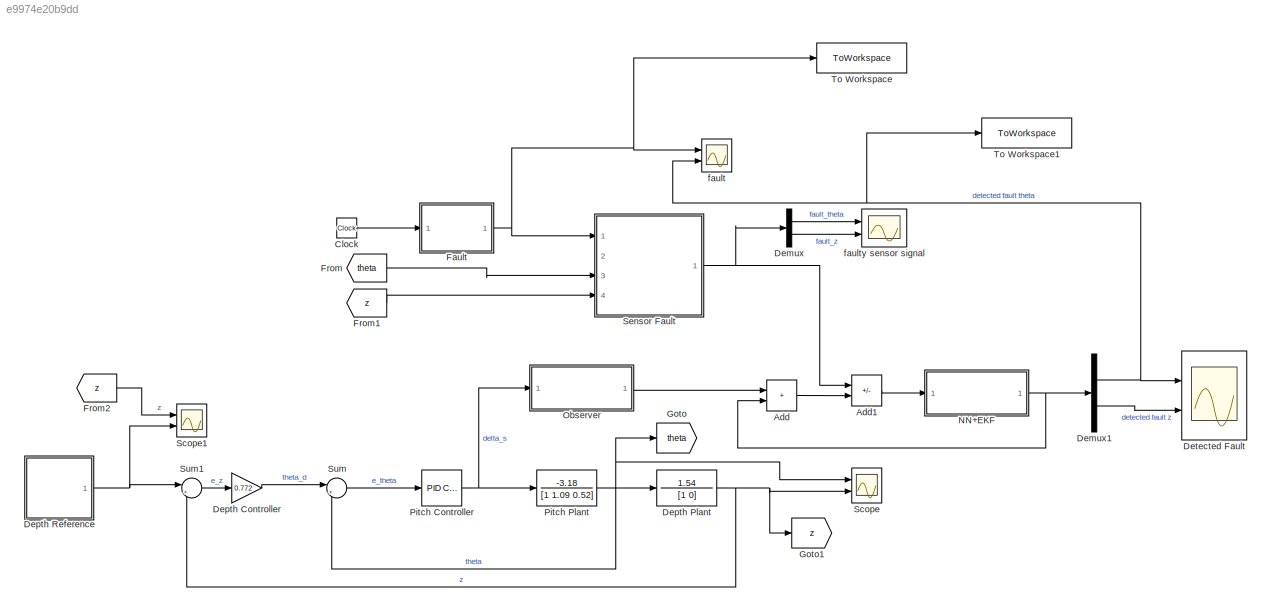
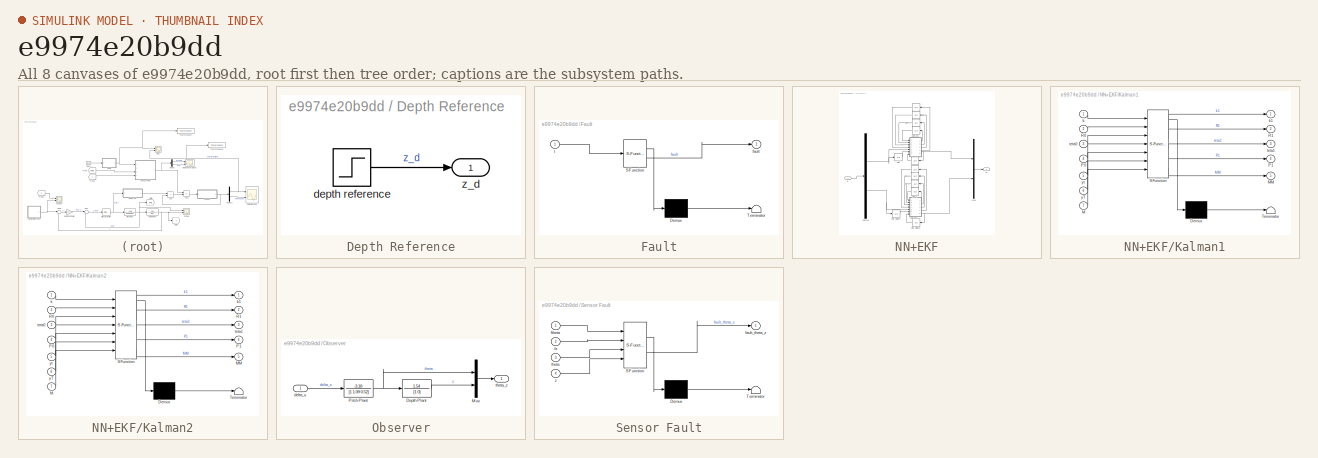
[diagram: thumbnail index - all 8 canvases of the model, root first then tree order]
MODEL slx_e9974e20b9dd
KIND model
CONFIG AbsTol = auto
CONFIG EnableMultiTasking = off
CONFIG FixedStep = auto
CONFIG MaxStep = auto
CONFIG MinStep = auto
CONFIG RelTol = 1e-3
CONFIG SampleTimeConstraint = Unconstrained
CONFIG SolverName = VariableStepAuto
CONFIG StartTime = 0.0
CONFIG StopTime = 10.0
BLOCK [Sum] Add
  IconShape = rectangular
  Ports = [2, 1]
BLOCK [Sum] Add1
  IconShape = rectangular
  Inputs = +-
  Ports = [2, 1]
BLOCK [Clock] Clock
BLOCK [Demux] Demux
  Outputs = 2
  Ports = [1, 2]
BLOCK [Demux] Demux1
  Outputs = 2
  Ports = [1, 2]
BLOCK [Gain] Depth Controller
  Gain = 0.772
BLOCK [TransferFcn] Depth Plant
  Denominator = [1 0]
  Numerator = 1.54
BLOCK [SubSystem] Depth Reference
  Ports = [0, 1]
  RequestExecContextInheritance = off
BLOCK [Step] Depth Reference/depth reference
  After = 10
  SampleTime = 0
  Time = 0
BLOCK [Outport] Depth Reference/z_d
BLOCK [Scope] Detected Fault
  Floating = off
  NumInputPorts = 2
  Ports = [2]
  ScopeSpecificationString = Simulink.scopes.TimeScopeBlockCfg('CurrentConfiguration', extmgr.ConfigurationSet(extmgr.Configuration('Core','General UI',true),extmgr.Configuration('Core','Source UI',true),extmgr.Configuration('Sources','WiredSimulink',true,'DataLoggingVariableName','ScopeData1'),extmgr.Configuration('Visuals','Time Domain',true,'SerializedDisplays',{struct('MinYLimReal','-0.00629','MaxYLimReal','0.0559','YLabe...<+1446ch>
BLOCK [SubSystem] Fault
  ErrorFcn = Stateflow.Translate.translate
  PermitHierarchicalResolution = ExplicitOnly
  Ports = [1, 1]
  RequestExecContextInheritance = off
  SFBlockType = MATLAB Function
  TreatAsAtomicUnit = on
BLOCK [Demux] Fault/ Demux 
  Outputs = 1
  Ports = [1, 1]
BLOCK [S-Function] Fault/ SFunction 
  EnableBusSupport = on
  FunctionName = sf_sfun
  PortCounts = [1 2]
  Ports = [1, 2]
  SFcnIsStateOwnerBlock = off
  SFunctionDeploymentMode = off
  Tag = Stateflow S-Function 2
BLOCK [Terminator] Fault/ Terminator 
BLOCK [Outport] Fault/fault
BLOCK [Inport] Fault/t
BLOCK [From] From
  GotoTag = theta
BLOCK [From] From1
  GotoTag = z
BLOCK [From] From2
  GotoTag = z
BLOCK [Goto] Goto
  GotoTag = theta
BLOCK [Goto] Goto1
  GotoTag = z
BLOCK [SubSystem] NN+EKF
  Ports = [1, 1]
  RequestExecContextInheritance = off
BLOCK [UnitDelay] NN+EKF/ 
  HasFrameUpgradeWarning = on
  InitialCondition = 1
  NameLocation = top
  SampleTime = -1
BLOCK [UnitDelay] NN+EKF/  
  HasFrameUpgradeWarning = on
  InitialCondition = 5*eye(3)
  SampleTime = -1
BLOCK [UnitDelay] NN+EKF/   
  HasFrameUpgradeWarning = on
  InitialCondition = 5*eye(3)
  SampleTime = -1
BLOCK [UnitDelay] NN+EKF/      
  HasFrameUpgradeWarning = on
  InitialCondition = .01
  SampleTime = -1
BLOCK [Demux] NN+EKF/Demux
  Outputs = 2
  Ports = [1, 2]
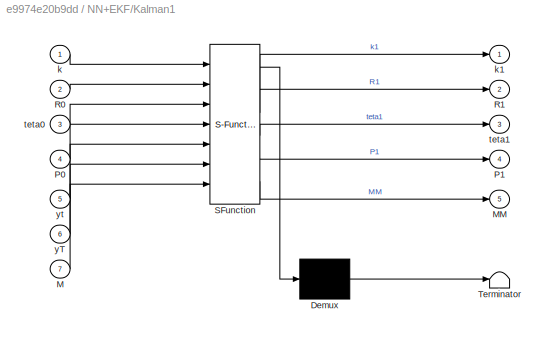
BLOCK [SubSystem] NN+EKF/Kalman1
  ErrorFcn = Stateflow.Translate.translate
  PermitHierarchicalResolution = ExplicitOnly
  Ports = [7, 5]
  RequestExecContextInheritance = off
  SFBlockType = MATLAB Function
  TreatAsAtomicUnit = on
BLOCK [Demux] NN+EKF/Kalman1/ Demux 
  Outputs = 1
  Ports = [1, 1]
BLOCK [S-Function] NN+EKF/Kalman1/ SFunction 
  EnableBusSupport = on
  FunctionName = sf_sfun
  PortCounts = [7 6]
  Ports = [7, 6]
  SFcnIsStateOwnerBlock = off
  SFunctionDeploymentMode = off
  Tag = Stateflow S-Function 8
BLOCK [Terminator] NN+EKF/Kalman1/ Terminator 
BLOCK [Inport] NN+EKF/Kalman1/M
  Port = 7
BLOCK [Outport] NN+EKF/Kalman1/MM
  Port = 5
  VectorParamsAs1DForOutWhenUnconnected = off
BLOCK [Inport] NN+EKF/Kalman1/P0
  Port = 4
BLOCK [Outport] NN+EKF/Kalman1/P1
  Port = 4
  VectorParamsAs1DForOutWhenUnconnected = off
BLOCK [Inport] NN+EKF/Kalman1/R0
  Port = 2
BLOCK [Outport] NN+EKF/Kalman1/R1
  Port = 2
  VectorParamsAs1DForOutWhenUnconnected = off
BLOCK [Inport] NN+EKF/Kalman1/k
BLOCK [Outport] NN+EKF/Kalman1/k1
  VectorParamsAs1DForOutWhenUnconnected = off
BLOCK [Inport] NN+EKF/Kalman1/teta0
  Port = 3
BLOCK [Outport] NN+EKF/Kalman1/teta1
  Port = 3
  VectorParamsAs1DForOutWhenUnconnected = off
BLOCK [Inport] NN+EKF/Kalman1/yT
  Port = 6
BLOCK [Inport] NN+EKF/Kalman1/yt
  Port = 5
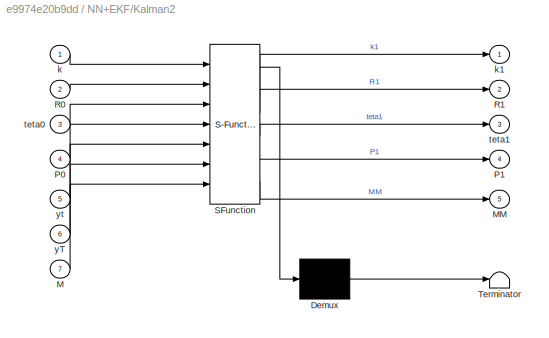
BLOCK [SubSystem] NN+EKF/Kalman2
  ErrorFcn = Stateflow.Translate.translate
  PermitHierarchicalResolution = ExplicitOnly
  Ports = [7, 5]
  RequestExecContextInheritance = off
  SFBlockType = MATLAB Function
  TreatAsAtomicUnit = on
BLOCK [Demux] NN+EKF/Kalman2/ Demux 
  Outputs = 1
  Ports = [1, 1]
BLOCK [S-Function] NN+EKF/Kalman2/ SFunction 
  EnableBusSupport = on
  FunctionName = sf_sfun
  PortCounts = [7 6]
  Ports = [7, 6]
  SFcnIsStateOwnerBlock = off
  SFunctionDeploymentMode = off
  Tag = Stateflow S-Function 9
BLOCK [Terminator] NN+EKF/Kalman2/ Terminator 
BLOCK [Inport] NN+EKF/Kalman2/M
  Port = 7
BLOCK [Outport] NN+EKF/Kalman2/MM
  Port = 5
  VectorParamsAs1DForOutWhenUnconnected = off
BLOCK [Inport] NN+EKF/Kalman2/P0
  Port = 4
BLOCK [Outport] NN+EKF/Kalman2/P1
  Port = 4
  VectorParamsAs1DForOutWhenUnconnected = off
BLOCK [Inport] NN+EKF/Kalman2/R0
  Port = 2
BLOCK [Outport] NN+EKF/Kalman2/R1
  Port = 2
  VectorParamsAs1DForOutWhenUnconnected = off
BLOCK [Inport] NN+EKF/Kalman2/k
BLOCK [Outport] NN+EKF/Kalman2/k1
  VectorParamsAs1DForOutWhenUnconnected = off
BLOCK [Inport] NN+EKF/Kalman2/teta0
  Port = 3
BLOCK [Outport] NN+EKF/Kalman2/teta1
  Port = 3
  VectorParamsAs1DForOutWhenUnconnected = off
BLOCK [Inport] NN+EKF/Kalman2/yT
  Port = 6
BLOCK [Inport] NN+EKF/Kalman2/yt
  Port = 5
BLOCK [Outport] NN+EKF/M
BLOCK [Mux] NN+EKF/Mux
  DisplayOption = bar
  Inputs = 2
  Ports = [2, 1]
BLOCK [UnitDelay] NN+EKF/Unit 
  HasFrameUpgradeWarning = on
  NameLocation = top
  SampleTime = -1
BLOCK [UnitDelay] NN+EKF/Unit 2
  HasFrameUpgradeWarning = on
  InitialCondition = 1
  SampleTime = -1
BLOCK [UnitDelay] NN+EKF/Unit 4
  HasFrameUpgradeWarning = on
  InitialCondition = .00002
  SampleTime = -1
BLOCK [UnitDelay] NN+EKF/Unit 5
  HasFrameUpgradeWarning = on
  InitialCondition = .00002
  SampleTime = -1
BLOCK [UnitDelay] NN+EKF/Unit 8
  HasFrameUpgradeWarning = on
  InitialCondition = [1;.5;.5]
  SampleTime = -1
BLOCK [UnitDelay] NN+EKF/Unit 9
  HasFrameUpgradeWarning = on
  InitialCondition = [1;.5;.5]
  SampleTime = -1
BLOCK [UnitDelay] NN+EKF/Unit Delay4
  HasFrameUpgradeWarning = on
  SampleTime = -1
BLOCK [UnitDelay] NN+EKF/Unit Delay5
  HasFrameUpgradeWarning = on
  InitialCondition = .01
  NameLocation = top
  SampleTime = -1
BLOCK [Inport] NN+EKF/e
BLOCK [SubSystem] Observer
  Ports = [1, 1]
  RequestExecContextInheritance = off
BLOCK [TransferFcn] Observer/Depth Plant
  Denominator = [1 0]
  Numerator = 1.54
BLOCK [Mux] Observer/Mux
  DisplayOption = bar
  Inputs = 2
  Ports = [2, 1]
BLOCK [TransferFcn] Observer/Pitch Plant
  Denominator = [1 1.09 0.52]
  Numerator = -3.18
BLOCK [Inport] Observer/delta_s
BLOCK [Outport] Observer/theta_z
BLOCK [Reference] Pitch Controller  REF=pid_lib/PID Controller
  Ports = [1, 1]
  SourceBlock = pid_lib/PID Controller
  SourceProductBaseCode = SL
  SourceType = PID 1dof
BLOCK [TransferFcn] Pitch Plant
  Denominator = [1 1.09 0.52]
  Numerator = -3.18
BLOCK [Scope] Scope
  Floating = off
  NumInputPorts = 2
  Ports = [2]
  ScopeSpecificationString = Simulink.scopes.TimeScopeBlockCfg('CurrentConfiguration', extmgr.ConfigurationSet(extmgr.Configuration('Core','General UI',true),extmgr.Configuration('Core','Source UI',true),extmgr.Configuration('Sources','WiredSimulink',true),extmgr.Configuration('Visuals','Time Domain',true,'SerializedDisplays',{struct('MinYLimReal','-1.24999','MaxYLimReal','11.2499','YLabelReal','','MinYLimMag','0.00000','MaxY...<+1407ch>
BLOCK [Scope] Scope1
  Floating = off
  NumInputPorts = 2
  Ports = [2]
  ScopeSpecificationString = Simulink.scopes.TimeScopeBlockCfg('CurrentConfiguration', extmgr.ConfigurationSet(extmgr.Configuration('Core','General UI',true,'FigureColor',[1 1 1]),extmgr.Configuration('Core','Source UI',true),extmgr.Configuration('Sources','WiredSimulink',true,'DataLoggingVariableName','ScopeData1'),extmgr.Configuration('Visuals','Time Domain',true,'SerializedDisplays',{struct('MinYLimReal','-1.25','MaxYLimRe...<+1759ch>
BLOCK [SubSystem] Sensor Fault
  ErrorFcn = Stateflow.Translate.translate
  PermitHierarchicalResolution = ExplicitOnly
  Ports = [4, 1]
  RequestExecContextInheritance = off
  SFBlockType = MATLAB Function
  TreatAsAtomicUnit = on
BLOCK [Demux] Sensor Fault/ Demux 
  Outputs = 1
  Ports = [1, 1]
BLOCK [S-Function] Sensor Fault/ SFunction 
  EnableBusSupport = on
  FunctionName = sf_sfun
  PortCounts = [4 2]
  Ports = [4, 2]
  SFcnIsStateOwnerBlock = off
  SFunctionDeploymentMode = off
  Tag = Stateflow S-Function 1
BLOCK [Terminator] Sensor Fault/ Terminator 
BLOCK [Outport] Sensor Fault/fault_theta_z
BLOCK [Inport] Sensor Fault/ftheta
BLOCK [Inport] Sensor Fault/fz
  Port = 2
BLOCK [Inport] Sensor Fault/theta
  Port = 3
BLOCK [Inport] Sensor Fault/z
  Port = 4
BLOCK [Sum] Sum
  Inputs = |+-
  Ports = [2, 1]
BLOCK [Sum] Sum1
  Inputs = |+-
  Ports = [2, 1]
BLOCK [ToWorkspace] To Workspace
  FixptAsFi = on
  MaxDataPoints = inf
  Ports = [1]
  SampleTime = -1
  VariableName = f_d
BLOCK [ToWorkspace] To Workspace1
  FixptAsFi = on
  MaxDataPoints = inf
  Ports = [1]
  SampleTime = -1
  VariableName = f
BLOCK [Scope] fault
  Floating = off
  NumInputPorts = 2
  Ports = [2]
  ScopeSpecificationString = Simulink.scopes.TimeScopeBlockCfg('CurrentConfiguration', extmgr.ConfigurationSet(extmgr.Configuration('Core','General UI',true,'FigureColor',[1 1 1]),extmgr.Configuration('Core','Source UI',true),extmgr.Configuration('Sources','WiredSimulink',true,'DataLoggingVariableName','ScopeData2'),extmgr.Configuration('Visuals','Time Domain',true,'SerializedDisplays',{struct('MinYLimReal','-0.00621','MaxYLi...<+1794ch>
BLOCK [Scope] faulty sensor signal
  Floating = off
  NumInputPorts = 2
  Ports = [2]
  ScopeSpecificationString = Simulink.scopes.TimeScopeBlockCfg('CurrentConfiguration', extmgr.ConfigurationSet(extmgr.Configuration('Core','General UI',true),extmgr.Configuration('Core','Source UI',true),extmgr.Configuration('Sources','WiredSimulink',true,'DataLoggingVariableName','ScopeData3'),extmgr.Configuration('Visuals','Time Domain',true,'SerializedDisplays',{struct('MinYLimReal','-1.24999','MaxYLimReal','11.2499','YLab...<+1431ch>
LINE Add1:1 -> NN+EKF:1
LINE Add:1 -> Add1:2
LINE Clock:1 -> Fault:1
NET Demux1:1 -> Detected Fault:1, To Workspace1:1, fault:2
LINE Demux1:2 -> Detected Fault:2
LINE Demux:1 -> faulty sensor signal:1
LINE Demux:2 -> faulty sensor signal:2
LINE Depth Controller:1 -> Sum:1
NET Depth Plant:1 -> Goto1:1, Scope:2, Sum1:2
LINE Depth Reference/depth reference:1 -> Depth Reference/z_d:1
NET Depth Reference:1 -> Scope1:2, Sum1:1
NET Fault:1 -> Sensor Fault:1, To Workspace:1, fault:1
LINE From1:1 -> Sensor Fault:4
LINE From2:1 -> Scope1:1
LINE From:1 -> Sensor Fault:3
LINE NN+EKF/      :1 -> NN+EKF/Kalman1:7
LINE NN+EKF/   :1 -> NN+EKF/Kalman2:4
LINE NN+EKF/  :1 -> NN+EKF/Kalman1:4
LINE NN+EKF/ :1 -> NN+EKF/Kalman1:1
NET NN+EKF/Demux:1 -> NN+EKF/Kalman1:5, NN+EKF/Unit :1
NET NN+EKF/Demux:2 -> NN+EKF/Kalman2:5, NN+EKF/Unit Delay4:1
LINE NN+EKF/Kalman1:1 -> NN+EKF/ :1
LINE NN+EKF/Kalman1:2 -> NN+EKF/Unit 4:1
LINE NN+EKF/Kalman1:3 -> NN+EKF/Unit 9:1
LINE NN+EKF/Kalman1:4 -> NN+EKF/  :1
NET NN+EKF/Kalman1:5 -> NN+EKF/      :1, NN+EKF/Mux:1
LINE NN+EKF/Kalman2:1 -> NN+EKF/Unit 2:1
LINE NN+EKF/Kalman2:2 -> NN+EKF/Unit 5:1
LINE NN+EKF/Kalman2:3 -> NN+EKF/Unit 8:1
LINE NN+EKF/Kalman2:4 -> NN+EKF/   :1
NET NN+EKF/Kalman2:5 -> NN+EKF/Mux:2, NN+EKF/Unit Delay5:1
LINE NN+EKF/Mux:1 -> NN+EKF/M:1
LINE NN+EKF/Unit 2:1 -> NN+EKF/Kalman2:1
LINE NN+EKF/Unit 4:1 -> NN+EKF/Kalman1:2
LINE NN+EKF/Unit 5:1 -> NN+EKF/Kalman2:2
LINE NN+EKF/Unit 8:1 -> NN+EKF/Kalman2:3
LINE NN+EKF/Unit 9:1 -> NN+EKF/Kalman1:3
LINE NN+EKF/Unit :1 -> NN+EKF/Kalman1:6
LINE NN+EKF/Unit Delay4:1 -> NN+EKF/Kalman2:6
LINE NN+EKF/Unit Delay5:1 -> NN+EKF/Kalman2:7
LINE NN+EKF/e:1 -> NN+EKF/Demux:1
NET NN+EKF:1 -> Add:2, Demux1:1
LINE Observer/Depth Plant:1 -> Observer/Mux:2
LINE Observer/Mux:1 -> Observer/theta_z:1
NET Observer/Pitch Plant:1 -> Observer/Depth Plant:1, Observer/Mux:1
LINE Observer/delta_s:1 -> Observer/Pitch Plant:1
LINE Observer:1 -> Add:1
NET Pitch Controller:1 -> Observer:1, Pitch Plant:1
NET Pitch Plant:1 -> Depth Plant:1, Goto:1, Scope:1, Sum:2
NET Sensor Fault:1 -> Add1:1, Demux:1
LINE Sum1:1 -> Depth Controller:1
LINE Sum:1 -> Pitch Controller:1
note: NET lines group one-source signal fan-out (src -> all destinations, sorted); 1:1 wires keep LINE
CHART Sensor Fault states=1 transitions=1
  STATE_LABEL 'eML_blk_kernel()'
  STATE_LABEL 'SCRIPT:\nfunction fault_theta_z = fcn(ftheta,fz,theta,z)\n% This function creates the faulty signal from the sensor\nfault_theta_z = [theta; z]+[ftheta; fz]+[0.0006; 0.000001];\nend\n'
CHART Fault states=1 transitions=1
  STATE_LABEL 'eML_blk_kernel()'
  STATE_LABEL 'SCRIPT:\nfunction fault = fcn(t)\n% This function creates the fault\nt0=5;\nomega=0.01;\nif t<=t0\n    fault=0;\nelse\n    fault=1-exp(-omega*(t-t0));\nend'
CHART NN+EKF/Kalman1 states=1 transitions=1
  STATE_LABEL 'eML_blk_kernel()'
  STATE_LABEL "SCRIPT:\nfunction [k1,R1,teta1,P1,MM]  = fcn(k,R0,teta0,P0,yt,yT,M)\neta=1.5;\nZ=teta0(2)*M+teta0(3)*yT;\nsigma=(1-exp(-Z))/(1+exp(-Z));\nH=[sigma;teta0(1)*M*0.5*(1-sigma^2);teta0(1)*yT*0.5*(1-sigma^2)];\nR1=R0+(yt^2-R0)/k;\nK=P0*H*(((H'*P0*H)+R1)^(-1));\nteta1=teta0+eta*K*(yt);\nn=teta1(2)*M+teta1(3)*yT;\nMM=teta1(1)*((1-exp(-n))/(1+exp(-n)));\nP1=P0-K*H'*P0;\nk1=k+1;"
CHART NN+EKF/Kalman2 states=1 transitions=1
  STATE_LABEL 'eML_blk_kernel()'
  STATE_LABEL "SCRIPT:\nfunction [k1,R1,teta1,P1,MM]  = fcn(k,R0,teta0,P0,yt,yT,M)\neta=1;\nZ=teta0(2)*M+teta0(3)*yT;\nsigma=(1-exp(-Z))/(1+exp(-Z));\nH=[sigma;teta0(1)*M*.5*(1-sigma^2);teta0(1)*yT*0.5*(1-sigma^2)];\nR1=R0+(yt^2-R0)/k;\nK=P0*H*(((H'*P0*H)+R1)^(-1));\nteta1=teta0+eta*K*(yt);\nn=teta1(2)*M+teta1(3)*yT;\nMM=teta1(1)*((1-exp(-n))/(1+exp(-n)));\nP1=P0-K*H'*P0;\nk1=k+1;"
CHART  states=0 transitions=0
CHART  states=0 transitions=0
CHART  states=0 transitions=0
CHART  states=0 transitions=0
